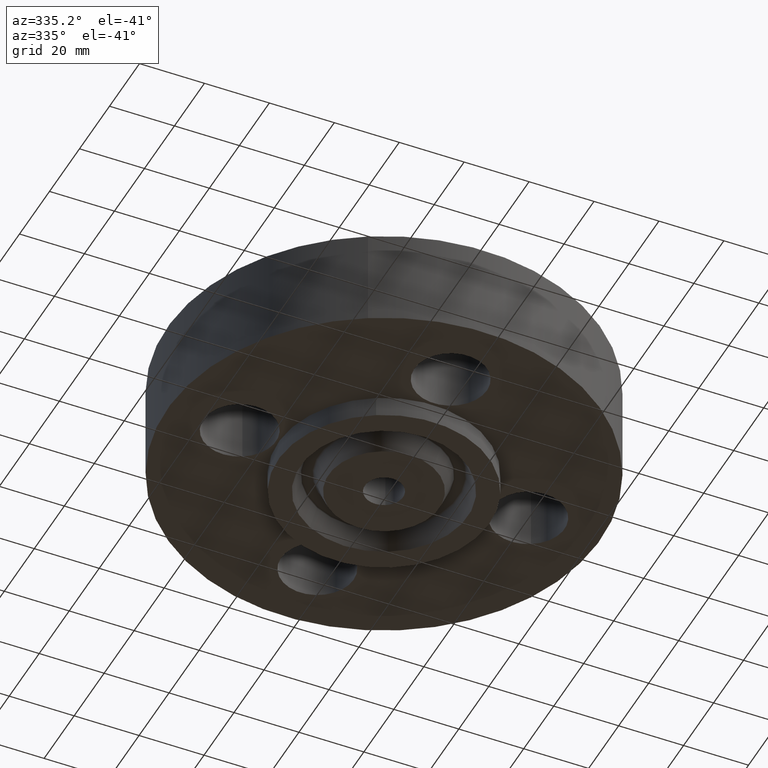
[diagram: clean part render]
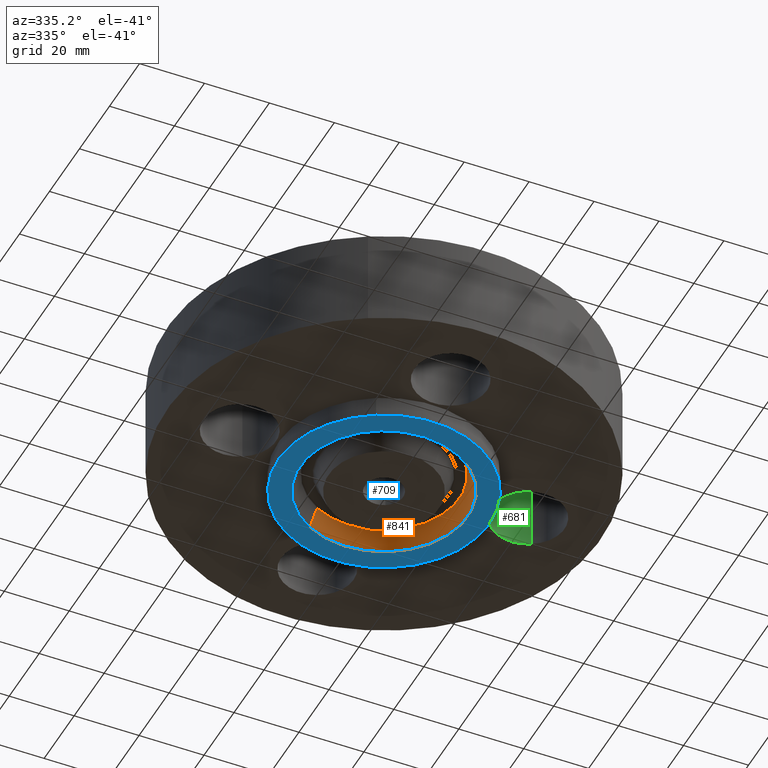
[diagram: same view with three faces highlighted in distinct colors, each labeled with its STEP entity id]
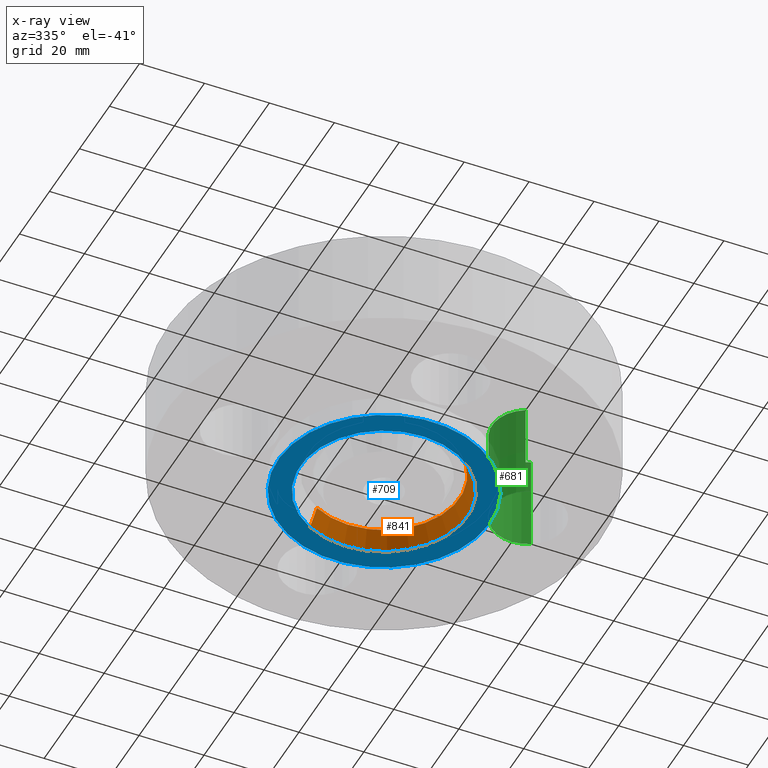
[diagram: x-ray of the same camera — body ghosted, the three highlighted faces saturated]
A machine part, auxiliary view with three faces highlighted in distinct colors.
The next image is the same camera in x-ray (body ghosted, the three faces saturated) — at least one of them is partly hidden behind the body in this view.
Their STEP definitions:

[orange] entity #841 — the highlighted conical surface has half-angle 23 deg.
#702=AXIS2_PLACEMENT_3D('Circle Axis2P3D',#700,#701,$) ;
#776=AXIS2_PLACEMENT_3D('Cone Axis2P3D',#773,#774,#775) ;
#797=AXIS2_PLACEMENT_3D('Circle Axis2P3D',#795,#796,$) ;
#695=CARTESIAN_POINT('Vertex',(0.487096347224,-0.891623882884,-0.250000000001)) ;
#697=CARTESIAN_POINT('Vertex',(-0.487096347224,0.891623882884,-0.250000000001)) ;
#700=CARTESIAN_POINT('Axis2P3D Location',(-3.49676543189E-017,-3.49676543189E-017,-0.250000000001)) ;
#742=CARTESIAN_POINT('Vertex',(-0.440063979875,0.80553171193,-0.0188873350169)) ;
#744=CARTESIAN_POINT('Vertex',(0.440063979875,-0.80553171193,-0.0188873350169)) ;
#773=CARTESIAN_POINT('Axis2P3D Location',(0.,0.,-0.0188873350169)) ;
#778=CARTESIAN_POINT('Line Origine',(-0.46358016355,0.848577797407,-0.134443667509)) ;
#783=CARTESIAN_POINT('Line Origine',(0.46358016355,-0.848577797407,-0.134443667509)) ;
#795=CARTESIAN_POINT('Axis2P3D Location',(0.,0.,-0.0188873350169)) ;
#701=DIRECTION('Axis2P3D Direction',(0.,0.,-0.0393700787402)) ;
#774=DIRECTION('Axis2P3D Direction',(-0.,-0.,-0.0393700787402)) ;
#775=DIRECTION('Axis2P3D XDirection',(-0.0188750212049,0.0345504945626,0.)) ;
#779=DIRECTION('Vector Direction',(-0.00737505833565,0.0134999537303,-0.0362403485611)) ;
#784=DIRECTION('Vector Direction',(0.00737505833565,-0.0134999537303,-0.0362403485611)) ;
#796=DIRECTION('Axis2P3D Direction',(0.,0.,0.0393700787402)) ;
#780=VECTOR('Line Direction',#779,0.0393700787402) ;
#785=VECTOR('Line Direction',#784,0.0393700787402) ;
#836=ORIENTED_EDGE('',*,*,#704,.T.) ;
#837=ORIENTED_EDGE('',*,*,#787,.T.) ;
#838=ORIENTED_EDGE('',*,*,#799,.T.) ;
#839=ORIENTED_EDGE('',*,*,#782,.F.) ;
#841=ADVANCED_FACE('PartBody',(#840),#777,.F.) ;
#703=CIRCLE('generated circle',#702,1.016) ;
#798=CIRCLE('generated circle',#797,0.917898494011) ;
#777=CONICAL_SURFACE('Cone',#776,0.917898494011,0.401425727959) ;
#704=EDGE_CURVE('',#698,#696,#703,.T.) ;
#782=EDGE_CURVE('',#698,#743,#781,.F.) ;
#787=EDGE_CURVE('',#696,#745,#786,.F.) ;
#799=EDGE_CURVE('',#745,#743,#798,.T.) ;
#835=EDGE_LOOP('',(#836,#837,#838,#839)) ;
#840=FACE_OUTER_BOUND('',#835,.T.) ;
#781=LINE('Line',#778,#780) ;
#786=LINE('Line',#783,#785) ;
#696=VERTEX_POINT('',#695) ;
#698=VERTEX_POINT('',#697) ;
#743=VERTEX_POINT('',#742) ;
#745=VERTEX_POINT('',#744) ;

[blue] entity #709 — the highlighted planar face has unit normal (0, 0, -1).
#431=AXIS2_PLACEMENT_3D('Circle Axis2P3D',#429,#430,$) ;
#466=AXIS2_PLACEMENT_3D('Circle Axis2P3D',#464,#465,$) ;
#685=AXIS2_PLACEMENT_3D('Plane Axis2P3D',#682,#683,#684) ;
#693=AXIS2_PLACEMENT_3D('Circle Axis2P3D',#691,#692,$) ;
#702=AXIS2_PLACEMENT_3D('Circle Axis2P3D',#700,#701,$) ;
#429=CARTESIAN_POINT('Axis2P3D Location',(0.,0.,-0.250000000001)) ;
#433=CARTESIAN_POINT('Vertex',(-0.614383827724,-1.12462205307,-0.250000000001)) ;
#435=CARTESIAN_POINT('Vertex',(0.614383827724,1.12462205307,-0.250000000001)) ;
#464=CARTESIAN_POINT('Axis2P3D Location',(0.,0.,-0.250000000001)) ;
#682=CARTESIAN_POINT('Axis2P3D Location',(0.,0.232000000001,-0.250000000001)) ;
#691=CARTESIAN_POINT('Axis2P3D Location',(3.49676543189E-017,-1.74838271595E-016,-0.250000000001)) ;
#695=CARTESIAN_POINT('Vertex',(0.487096347224,-0.891623882884,-0.250000000001)) ;
#697=CARTESIAN_POINT('Vertex',(-0.487096347224,0.891623882884,-0.250000000001)) ;
#700=CARTESIAN_POINT('Axis2P3D Location',(-3.49676543189E-017,-3.49676543189E-017,-0.250000000001)) ;
#430=DIRECTION('Axis2P3D Direction',(0.,0.,-0.0393700787402)) ;
#465=DIRECTION('Axis2P3D Direction',(0.,0.,-0.0393700787402)) ;
#683=DIRECTION('Axis2P3D Direction',(0.,0.,-0.0393700787402)) ;
#684=DIRECTION('Axis2P3D XDirection',(0.0393700787402,0.,0.)) ;
#692=DIRECTION('Axis2P3D Direction',(0.,0.,-0.0393700787402)) ;
#701=DIRECTION('Axis2P3D Direction',(0.,0.,-0.0393700787402)) ;
#688=ORIENTED_EDGE('',*,*,#437,.T.) ;
#689=ORIENTED_EDGE('',*,*,#468,.T.) ;
#706=ORIENTED_EDGE('',*,*,#699,.F.) ;
#707=ORIENTED_EDGE('',*,*,#704,.F.) ;
#708=FACE_BOUND('',#705,.T.) ;
#709=ADVANCED_FACE('PartBody',(#690,#708),#686,.T.) ;
#432=CIRCLE('generated circle',#431,1.28150000001) ;
#467=CIRCLE('generated circle',#466,1.28150000001) ;
#694=CIRCLE('generated circle',#693,1.016) ;
#703=CIRCLE('generated circle',#702,1.016) ;
#437=EDGE_CURVE('',#434,#436,#432,.T.) ;
#468=EDGE_CURVE('',#436,#434,#467,.T.) ;
#699=EDGE_CURVE('',#696,#698,#694,.T.) ;
#704=EDGE_CURVE('',#698,#696,#703,.T.) ;
#687=EDGE_LOOP('',(#688,#689)) ;
#705=EDGE_LOOP('',(#706,#707)) ;
#690=FACE_OUTER_BOUND('',#687,.T.) ;
#686=PLANE('',#685) ;
#434=VERTEX_POINT('',#433) ;
#436=VERTEX_POINT('',#435) ;
#696=VERTEX_POINT('',#695) ;
#698=VERTEX_POINT('',#697) ;

[green] entity #681 — the highlighted cylindrical surface (partial cylindrical patch) has radius 11.176 mm, axis along (0, -0, -1).
#509=AXIS2_PLACEMENT_3D('Circle Axis2P3D',#507,#508,$) ;
#642=AXIS2_PLACEMENT_3D('Cylinder Axis2P3D',#639,#640,#641) ;
#672=AXIS2_PLACEMENT_3D('Circle Axis2P3D',#670,#671,$) ;
#502=CARTESIAN_POINT('Vertex',(1.96094723699,0.386136327233,0.)) ;
#504=CARTESIAN_POINT('Vertex',(1.53905276302,-0.386136327233,0.)) ;
#507=CARTESIAN_POINT('Axis2P3D Location',(1.75000000001,0.,0.)) ;
#639=CARTESIAN_POINT('Axis2P3D Location',(1.75000000001,-1.72584639625E-016,1.18606299213)) ;
#644=CARTESIAN_POINT('Line Origine',(1.96094723699,0.386136327233,0.595000000002)) ;
#648=CARTESIAN_POINT('Vertex',(1.96094723699,0.386136327233,1.19)) ;
#651=CARTESIAN_POINT('Line Origine',(1.53905276302,-0.386136327233,0.595000000002)) ;
#655=CARTESIAN_POINT('Vertex',(1.53905276302,-0.386136327233,1.19)) ;
#670=CARTESIAN_POINT('Axis2P3D Location',(1.75000000001,-1.72584639625E-016,1.19)) ;
#508=DIRECTION('Axis2P3D Direction',(0.,0.,-0.0393700787402)) ;
#640=DIRECTION('Axis2P3D Direction',(0.,-0.,-0.0393700787402)) ;
#641=DIRECTION('Axis2P3D XDirection',(-0.0188750212049,-0.0345504945626,0.)) ;
#645=DIRECTION('Vector Direction',(0.,0.,-0.0393700787402)) ;
#652=DIRECTION('Vector Direction',(0.,0.,-0.0393700787402)) ;
#671=DIRECTION('Axis2P3D Direction',(0.,-0.,-0.0393700787402)) ;
#646=VECTOR('Line Direction',#645,0.0393700787402) ;
#653=VECTOR('Line Direction',#652,0.0393700787402) ;
#676=ORIENTED_EDGE('',*,*,#657,.F.) ;
#677=ORIENTED_EDGE('',*,*,#511,.T.) ;
#678=ORIENTED_EDGE('',*,*,#650,.T.) ;
#679=ORIENTED_EDGE('',*,*,#674,.F.) ;
#681=ADVANCED_FACE('PartBody',(#680),#643,.F.) ;
#510=CIRCLE('generated circle',#509,0.440000000002) ;
#673=CIRCLE('generated circle',#672,0.440000000002) ;
#643=CYLINDRICAL_SURFACE('generated cylinder',#642,0.440000000002) ;
#511=EDGE_CURVE('',#505,#503,#510,.T.) ;
#650=EDGE_CURVE('',#503,#649,#647,.F.) ;
#657=EDGE_CURVE('',#505,#656,#654,.F.) ;
#674=EDGE_CURVE('',#656,#649,#673,.T.) ;
#675=EDGE_LOOP('',(#676,#677,#678,#679)) ;
#680=FACE_OUTER_BOUND('',#675,.T.) ;
#647=LINE('Line',#644,#646) ;
#654=LINE('Line',#651,#653) ;
#503=VERTEX_POINT('',#502) ;
#505=VERTEX_POINT('',#504) ;
#649=VERTEX_POINT('',#648) ;
#656=VERTEX_POINT('',#655) ;